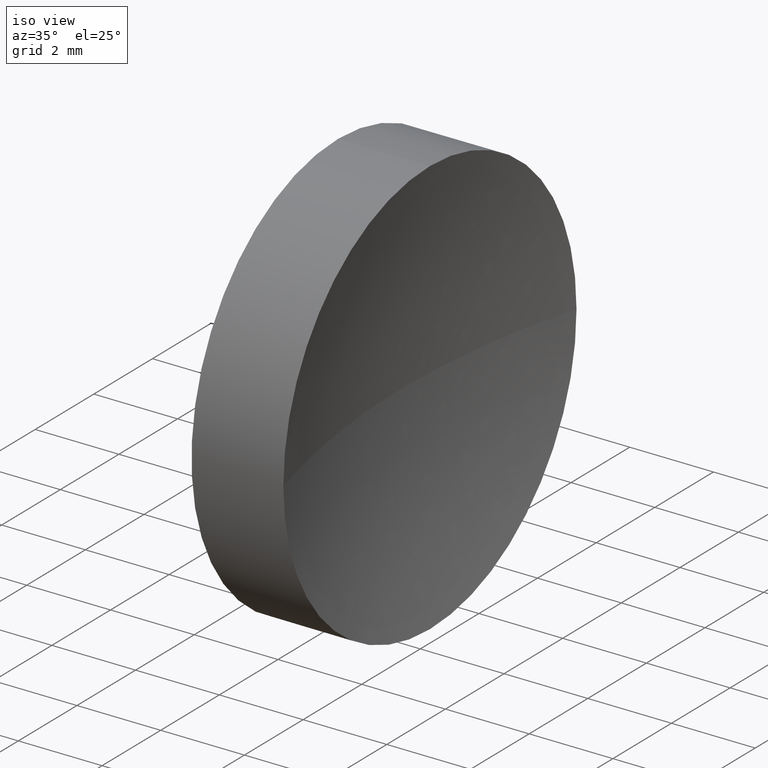
[diagram: clean part render]
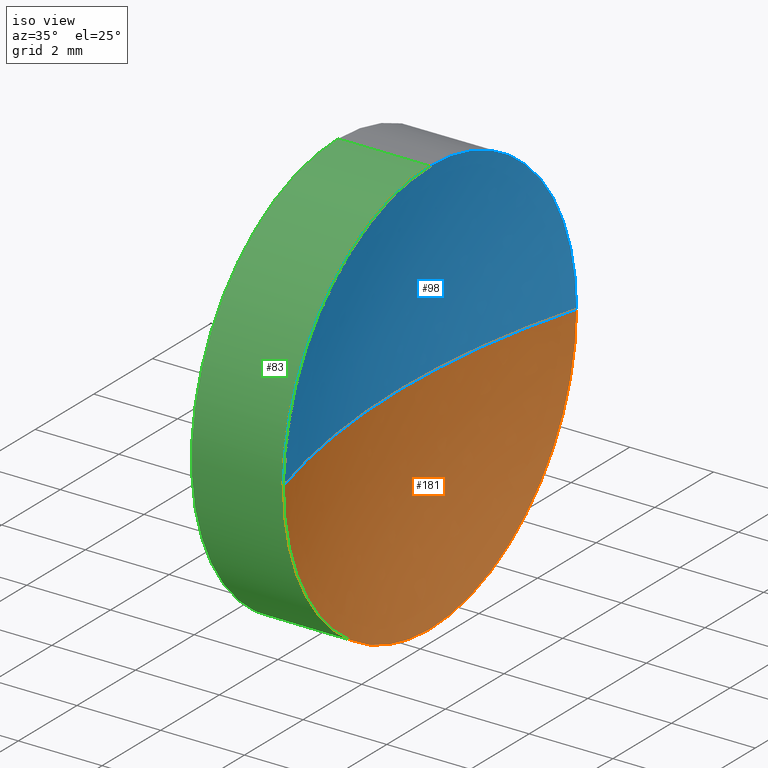
[diagram: same view with three faces highlighted in distinct colors, each labeled with its STEP entity id]
A machine part, iso view with three faces highlighted in distinct colors.
Their STEP definitions:

[orange] entity #181 — the highlighted spherical surface has radius 18.34 mm.
#3 = ORIENTED_EDGE ( 'NONE', *, *, #10, .F. ) ;
#9 = DIRECTION ( 'NONE',  ( 0.0000000000000000000, 0.0000000000000000000, 1.000000000000000000 ) ) ;
#10 = EDGE_CURVE ( 'NONE', #107, #159, #15, .T. ) ;
#12 = EDGE_CURVE ( 'NONE', #107, #144, #126, .T. ) ;
#15 = CIRCLE ( 'NONE', #37, 4.999999999999990200 ) ;
#18 = CARTESIAN_POINT ( 'NONE',  ( 49.20171121220714400, 28.47759563463747400, 0.0000000000000000000 ) ) ;
#19 = CARTESIAN_POINT ( 'NONE',  ( 49.89643989097209700, 28.47759563463748100, -4.999999999999990200 ) ) ;
#21 = DIRECTION ( 'NONE',  ( 0.0000000000000000000, 0.0000000000000000000, 1.000000000000000000 ) ) ;
#27 = AXIS2_PLACEMENT_3D ( 'NONE', #168, #9, #105 ) ;
#29 = CARTESIAN_POINT ( 'NONE',  ( 49.89643989097209700, 33.47759563463747400, 0.0000000000000000000 ) ) ;
#32 = EDGE_CURVE ( 'NONE', #159, #56, #89, .T. ) ;
#34 = CARTESIAN_POINT ( 'NONE',  ( 49.89643989097209700, 28.47759563463748100, 0.0000000000000000000 ) ) ;
#37 = AXIS2_PLACEMENT_3D ( 'NONE', #44, #172, #101 ) ;
#44 = CARTESIAN_POINT ( 'NONE',  ( 49.89643989097209700, 28.47759563463748100, 0.0000000000000000000 ) ) ;
#52 = ORIENTED_EDGE ( 'NONE', *, *, #32, .F. ) ;
#56 = VERTEX_POINT ( 'NONE', #114 ) ;
#57 = SPHERICAL_SURFACE ( 'NONE', #109, 18.34000000000000300 ) ;
#63 = DIRECTION ( 'NONE',  ( 0.0000000000000000000, 1.000000000000000000, 0.0000000000000000000 ) ) ;
#65 = DIRECTION ( 'NONE',  ( 0.0000000000000000000, 0.0000000000000000000, -1.000000000000000000 ) ) ;
#72 = EDGE_LOOP ( 'NONE', ( #152, #52, #3, #145 ) ) ;
#89 = CIRCLE ( 'NONE', #133, 4.999999999999990200 ) ;
#101 = DIRECTION ( 'NONE',  ( 0.0000000000000000000, 0.0000000000000000000, 1.000000000000000000 ) ) ;
#105 = DIRECTION ( 'NONE',  ( 1.000000000000000000, 0.0000000000000000000, 0.0000000000000000000 ) ) ;
#107 = VERTEX_POINT ( 'NONE', #29 ) ;
#109 = AXIS2_PLACEMENT_3D ( 'NONE', #173, #65, #63 ) ;
#114 = CARTESIAN_POINT ( 'NONE',  ( 49.89643989097209700, 23.47759563463748500, -6.123233995736754400E-016 ) ) ;
#119 = DIRECTION ( 'NONE',  ( -1.000000000000000000, -0.0000000000000000000, -0.0000000000000000000 ) ) ;
#125 = FACE_OUTER_BOUND ( 'NONE', #72, .T. ) ;
#126 = CIRCLE ( 'NONE', #27, 18.33999999999999600 ) ;
#133 = AXIS2_PLACEMENT_3D ( 'NONE', #34, #119, #21 ) ;
#143 = DIRECTION ( 'NONE',  ( 0.0000000000000000000, 1.224646799147353200E-016, -1.000000000000000000 ) ) ;
#144 = VERTEX_POINT ( 'NONE', #18 ) ;
#145 = ORIENTED_EDGE ( 'NONE', *, *, #12, .T. ) ;
#148 = EDGE_CURVE ( 'NONE', #56, #144, #150, .T. ) ;
#150 = CIRCLE ( 'NONE', #163, 18.34000000000000300 ) ;
#152 = ORIENTED_EDGE ( 'NONE', *, *, #148, .F. ) ;
#159 = VERTEX_POINT ( 'NONE', #19 ) ;
#161 = DIRECTION ( 'NONE',  ( 0.0000000000000000000, 1.000000000000000000, 1.224646799147353000E-016 ) ) ;
#163 = AXIS2_PLACEMENT_3D ( 'NONE', #185, #143, #161 ) ;
#168 = CARTESIAN_POINT ( 'NONE',  ( 67.54171121220714700, 28.47759563463747400, 0.0000000000000000000 ) ) ;
#172 = DIRECTION ( 'NONE',  ( -1.000000000000000000, -0.0000000000000000000, -0.0000000000000000000 ) ) ;
#173 = CARTESIAN_POINT ( 'NONE',  ( 67.54171121220714700, 28.47759563463747400, 0.0000000000000000000 ) ) ;
#181 = ADVANCED_FACE ( 'NONE', ( #125 ), #57, .F. ) ;
#185 = CARTESIAN_POINT ( 'NONE',  ( 67.54171121220714700, 28.47759563463747400, 0.0000000000000000000 ) ) ;

[blue] entity #98 — the highlighted spherical surface has radius 18.34 mm.
#9 = DIRECTION ( 'NONE',  ( 0.0000000000000000000, 0.0000000000000000000, 1.000000000000000000 ) ) ;
#12 = EDGE_CURVE ( 'NONE', #107, #144, #126, .T. ) ;
#18 = CARTESIAN_POINT ( 'NONE',  ( 49.20171121220714400, 28.47759563463747400, 0.0000000000000000000 ) ) ;
#24 = CARTESIAN_POINT ( 'NONE',  ( 49.89643989097209700, 28.47759563463748100, 4.999999999999990200 ) ) ;
#27 = AXIS2_PLACEMENT_3D ( 'NONE', #168, #9, #105 ) ;
#29 = CARTESIAN_POINT ( 'NONE',  ( 49.89643989097209700, 33.47759563463747400, 0.0000000000000000000 ) ) ;
#33 = EDGE_LOOP ( 'NONE', ( #149, #79, #76, #53 ) ) ;
#36 = CARTESIAN_POINT ( 'NONE',  ( 67.54171121220714700, 28.47759563463747400, 0.0000000000000000000 ) ) ;
#38 = DIRECTION ( 'NONE',  ( 0.0000000000000000000, 0.0000000000000000000, 1.000000000000000000 ) ) ;
#41 = AXIS2_PLACEMENT_3D ( 'NONE', #49, #174, #90 ) ;
#43 = VERTEX_POINT ( 'NONE', #24 ) ;
#49 = CARTESIAN_POINT ( 'NONE',  ( 49.89643989097209700, 28.47759563463748100, 0.0000000000000000000 ) ) ;
#53 = ORIENTED_EDGE ( 'NONE', *, *, #183, .F. ) ;
#56 = VERTEX_POINT ( 'NONE', #114 ) ;
#59 = CIRCLE ( 'NONE', #41, 4.999999999999990200 ) ;
#76 = ORIENTED_EDGE ( 'NONE', *, *, #12, .F. ) ;
#79 = ORIENTED_EDGE ( 'NONE', *, *, #148, .T. ) ;
#90 = DIRECTION ( 'NONE',  ( 0.0000000000000000000, 0.0000000000000000000, 1.000000000000000000 ) ) ;
#94 = FACE_OUTER_BOUND ( 'NONE', #33, .T. ) ;
#98 = ADVANCED_FACE ( 'NONE', ( #94 ), #120, .F. ) ;
#103 = AXIS2_PLACEMENT_3D ( 'NONE', #36, #104, #165 ) ;
#104 = DIRECTION ( 'NONE',  ( 0.0000000000000000000, 0.0000000000000000000, -1.000000000000000000 ) ) ;
#105 = DIRECTION ( 'NONE',  ( 1.000000000000000000, 0.0000000000000000000, 0.0000000000000000000 ) ) ;
#107 = VERTEX_POINT ( 'NONE', #29 ) ;
#114 = CARTESIAN_POINT ( 'NONE',  ( 49.89643989097209700, 23.47759563463748500, -6.123233995736754400E-016 ) ) ;
#120 = SPHERICAL_SURFACE ( 'NONE', #103, 18.34000000000000300 ) ;
#124 = CARTESIAN_POINT ( 'NONE',  ( 49.89643989097209700, 28.47759563463748100, 0.0000000000000000000 ) ) ;
#126 = CIRCLE ( 'NONE', #27, 18.33999999999999600 ) ;
#130 = CIRCLE ( 'NONE', #167, 4.999999999999990200 ) ;
#140 = EDGE_CURVE ( 'NONE', #56, #43, #59, .T. ) ;
#143 = DIRECTION ( 'NONE',  ( 0.0000000000000000000, 1.224646799147353200E-016, -1.000000000000000000 ) ) ;
#144 = VERTEX_POINT ( 'NONE', #18 ) ;
#148 = EDGE_CURVE ( 'NONE', #56, #144, #150, .T. ) ;
#149 = ORIENTED_EDGE ( 'NONE', *, *, #140, .F. ) ;
#150 = CIRCLE ( 'NONE', #163, 18.34000000000000300 ) ;
#161 = DIRECTION ( 'NONE',  ( 0.0000000000000000000, 1.000000000000000000, 1.224646799147353000E-016 ) ) ;
#163 = AXIS2_PLACEMENT_3D ( 'NONE', #185, #143, #161 ) ;
#165 = DIRECTION ( 'NONE',  ( 0.0000000000000000000, 1.000000000000000000, 0.0000000000000000000 ) ) ;
#167 = AXIS2_PLACEMENT_3D ( 'NONE', #124, #176, #38 ) ;
#168 = CARTESIAN_POINT ( 'NONE',  ( 67.54171121220714700, 28.47759563463747400, 0.0000000000000000000 ) ) ;
#174 = DIRECTION ( 'NONE',  ( -1.000000000000000000, -0.0000000000000000000, -0.0000000000000000000 ) ) ;
#176 = DIRECTION ( 'NONE',  ( -1.000000000000000000, -0.0000000000000000000, -0.0000000000000000000 ) ) ;
#183 = EDGE_CURVE ( 'NONE', #43, #107, #130, .T. ) ;
#185 = CARTESIAN_POINT ( 'NONE',  ( 67.54171121220714700, 28.47759563463747400, 0.0000000000000000000 ) ) ;

[green] entity #83 — the highlighted cylindrical surface (partial cylindrical patch) has radius 5 mm, axis along (-1, -0, -0).
#4 = DIRECTION ( 'NONE',  ( -1.000000000000000000, -0.0000000000000000000, -0.0000000000000000000 ) ) ;
#7 = EDGE_CURVE ( 'NONE', #159, #73, #11, .T. ) ;
#11 = LINE ( 'NONE', #175, #160 ) ;
#17 = EDGE_CURVE ( 'NONE', #73, #111, #82, .T. ) ;
#19 = CARTESIAN_POINT ( 'NONE',  ( 49.89643989097209700, 28.47759563463748100, -4.999999999999990200 ) ) ;
#21 = DIRECTION ( 'NONE',  ( 0.0000000000000000000, 0.0000000000000000000, 1.000000000000000000 ) ) ;
#24 = CARTESIAN_POINT ( 'NONE',  ( 49.89643989097209700, 28.47759563463748100, 4.999999999999990200 ) ) ;
#30 = CARTESIAN_POINT ( 'NONE',  ( 47.70171121220715100, 28.47759563463748100, 4.999999999999997300 ) ) ;
#32 = EDGE_CURVE ( 'NONE', #159, #56, #89, .T. ) ;
#34 = CARTESIAN_POINT ( 'NONE',  ( 49.89643989097209700, 28.47759563463748100, 0.0000000000000000000 ) ) ;
#41 = AXIS2_PLACEMENT_3D ( 'NONE', #49, #174, #90 ) ;
#43 = VERTEX_POINT ( 'NONE', #24 ) ;
#45 = DIRECTION ( 'NONE',  ( -1.000000000000000000, -0.0000000000000000000, -0.0000000000000000000 ) ) ;
#49 = CARTESIAN_POINT ( 'NONE',  ( 49.89643989097209700, 28.47759563463748100, 0.0000000000000000000 ) ) ;
#50 = CARTESIAN_POINT ( 'NONE',  ( 44.78209190302423800, 28.47759563463748100, 4.999999999999993800 ) ) ;
#56 = VERTEX_POINT ( 'NONE', #114 ) ;
#59 = CIRCLE ( 'NONE', #41, 4.999999999999990200 ) ;
#60 = AXIS2_PLACEMENT_3D ( 'NONE', #74, #45, #177 ) ;
#67 = CARTESIAN_POINT ( 'NONE',  ( 47.70171121220715100, 28.47759563463748100, 0.0000000000000000000 ) ) ;
#73 = VERTEX_POINT ( 'NONE', #134 ) ;
#74 = CARTESIAN_POINT ( 'NONE',  ( 44.78209190302423800, 28.47759563463748100, 0.0000000000000000000 ) ) ;
#81 = LINE ( 'NONE', #50, #88 ) ;
#82 = CIRCLE ( 'NONE', #137, 4.999999999999997300 ) ;
#83 = ADVANCED_FACE ( 'NONE', ( #169 ), #131, .T. ) ;
#88 = VECTOR ( 'NONE', #102, 1000.000000000000000 ) ;
#89 = CIRCLE ( 'NONE', #133, 4.999999999999990200 ) ;
#90 = DIRECTION ( 'NONE',  ( 0.0000000000000000000, 0.0000000000000000000, 1.000000000000000000 ) ) ;
#102 = DIRECTION ( 'NONE',  ( -1.000000000000000000, -0.0000000000000000000, -0.0000000000000000000 ) ) ;
#106 = ORIENTED_EDGE ( 'NONE', *, *, #140, .T. ) ;
#111 = VERTEX_POINT ( 'NONE', #30 ) ;
#113 = ORIENTED_EDGE ( 'NONE', *, *, #17, .F. ) ;
#114 = CARTESIAN_POINT ( 'NONE',  ( 49.89643989097209700, 23.47759563463748500, -6.123233995736754400E-016 ) ) ;
#119 = DIRECTION ( 'NONE',  ( -1.000000000000000000, -0.0000000000000000000, -0.0000000000000000000 ) ) ;
#131 = CYLINDRICAL_SURFACE ( 'NONE', #60, 4.999999999999993800 ) ;
#133 = AXIS2_PLACEMENT_3D ( 'NONE', #34, #119, #21 ) ;
#134 = CARTESIAN_POINT ( 'NONE',  ( 47.70171121220715100, 28.47759563463748100, -4.999999999999997300 ) ) ;
#137 = AXIS2_PLACEMENT_3D ( 'NONE', #67, #153, #170 ) ;
#140 = EDGE_CURVE ( 'NONE', #56, #43, #59, .T. ) ;
#146 = ORIENTED_EDGE ( 'NONE', *, *, #7, .F. ) ;
#153 = DIRECTION ( 'NONE',  ( -1.000000000000000000, -0.0000000000000000000, -0.0000000000000000000 ) ) ;
#157 = ORIENTED_EDGE ( 'NONE', *, *, #32, .T. ) ;
#159 = VERTEX_POINT ( 'NONE', #19 ) ;
#160 = VECTOR ( 'NONE', #4, 1000.000000000000000 ) ;
#169 = FACE_OUTER_BOUND ( 'NONE', #184, .T. ) ;
#170 = DIRECTION ( 'NONE',  ( 0.0000000000000000000, 0.0000000000000000000, 1.000000000000000000 ) ) ;
#174 = DIRECTION ( 'NONE',  ( -1.000000000000000000, -0.0000000000000000000, -0.0000000000000000000 ) ) ;
#175 = CARTESIAN_POINT ( 'NONE',  ( 44.78209190302423800, 28.47759563463748100, -4.999999999999993800 ) ) ;
#177 = DIRECTION ( 'NONE',  ( 0.0000000000000000000, 0.0000000000000000000, 1.000000000000000000 ) ) ;
#178 = EDGE_CURVE ( 'NONE', #43, #111, #81, .T. ) ;
#179 = ORIENTED_EDGE ( 'NONE', *, *, #178, .T. ) ;
#184 = EDGE_LOOP ( 'NONE', ( #146, #157, #106, #179, #113 ) ) ;